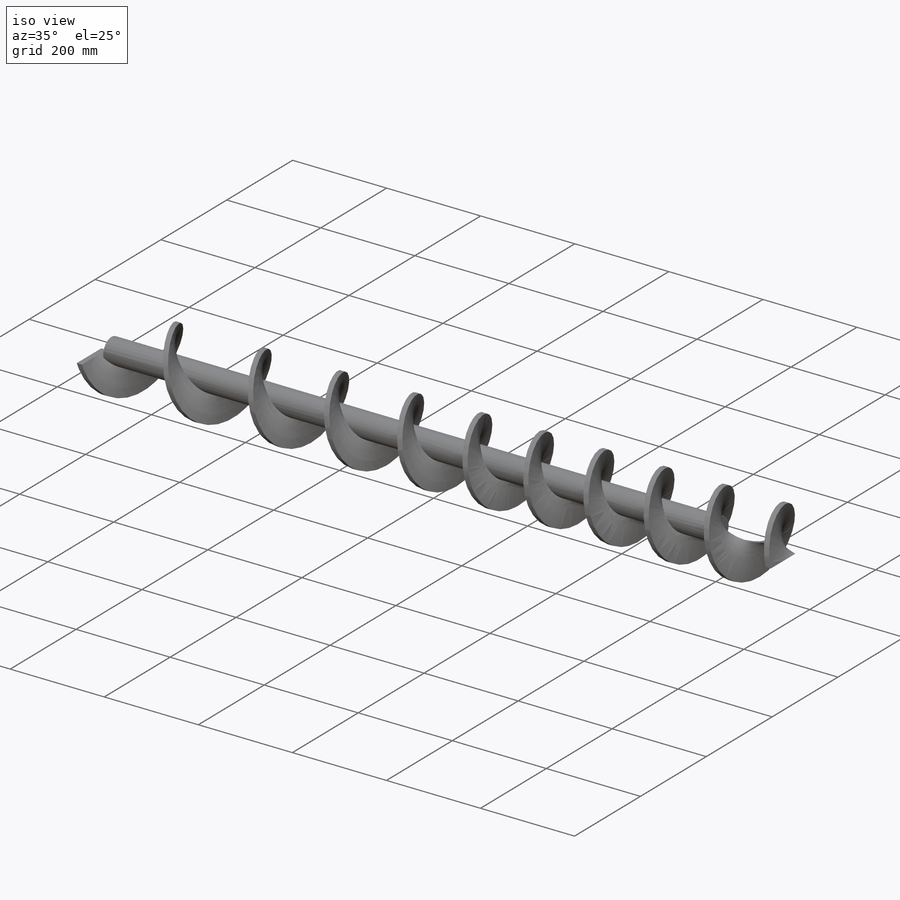
[diagram: iso view]
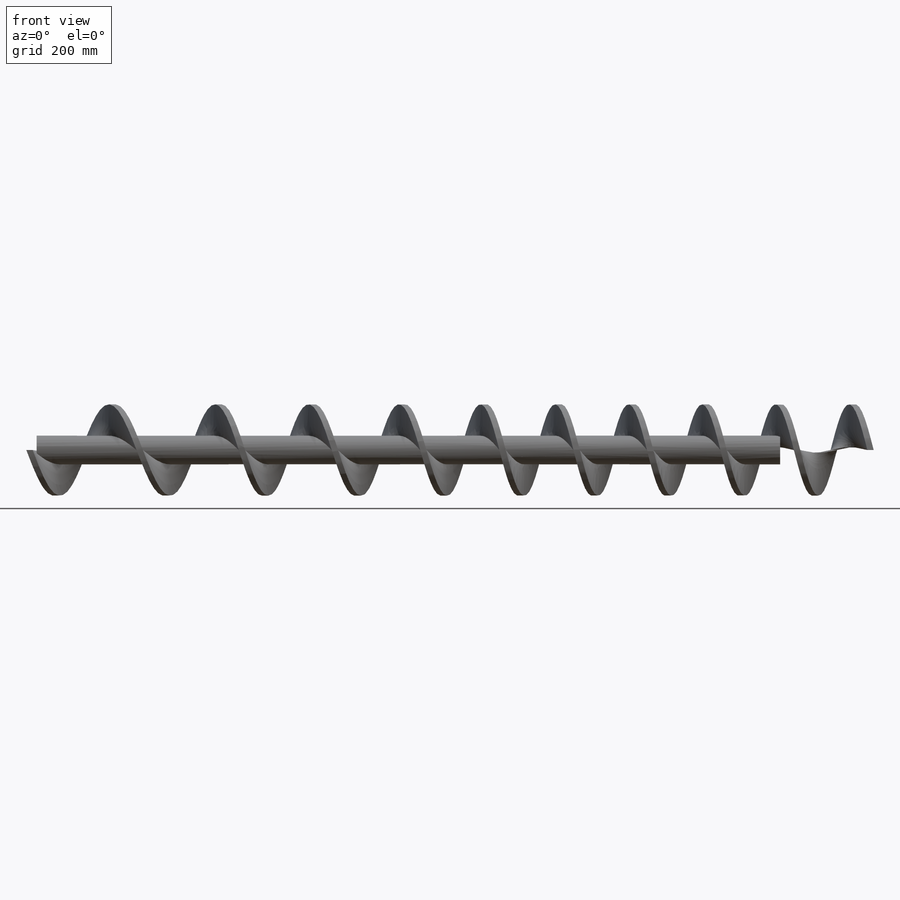
[diagram: front view]
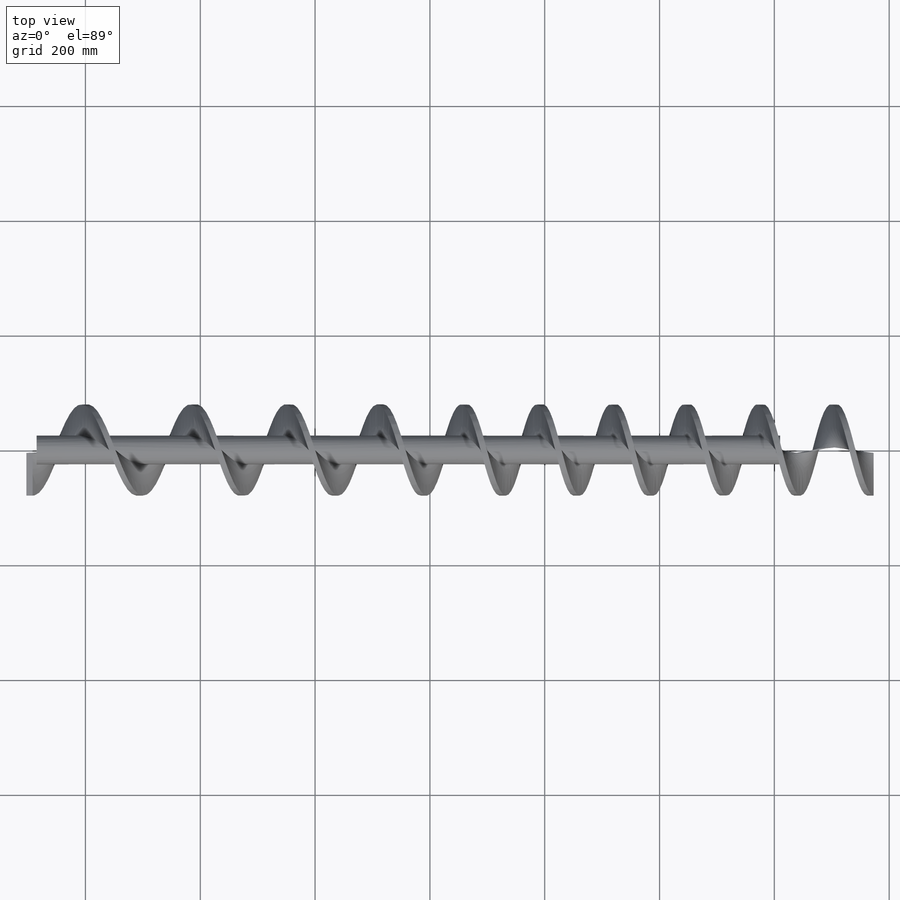
[diagram: top view]
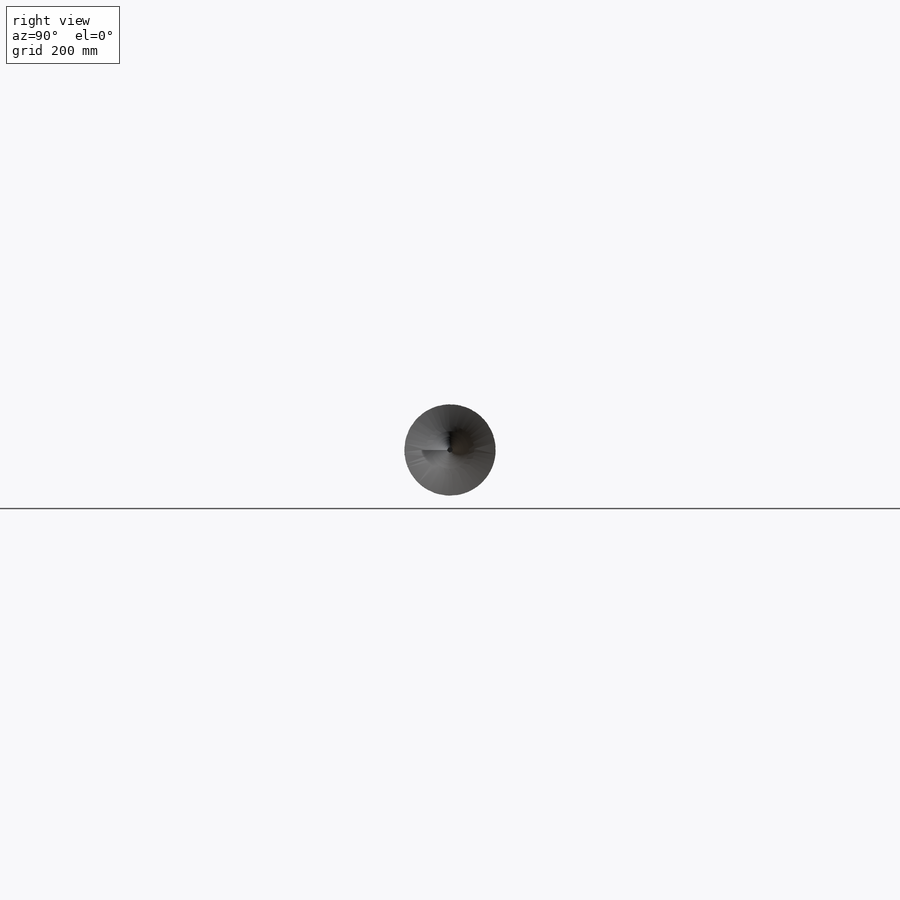
[diagram: right view]
SOLIDWORKS PART (.sldprt)
format: sldprt  version: not decoded by parser v0  size: 892,928 bytes
history: native  units: mm
features: plane x8, sketch x6, revolve x3, material x1, helix x1, sweep x1 (+10 scaffold rows collapsed)
feature tree (30):
  scaffold x10  (default folders/planes/origin — collapsed)
  material  "Material <nicht festgelegt>"
  plane  "Ebene vorne"
  plane  "Ebene oben"
  plane  "Ebene rechts"
  sketch  "Basisskizze Rotationskörper"  dims[c1.D1=~167.398945mm c2.D1=2020.0mm c2.D2=1295.0mm c2.D3=100.0mm c2.D4=170.0mm c2.D5=350.0mm c2.D6=445.0mm c2.D7=47.9mm c2.D8=55.0mm c2.D9=85.0mm c2.D10=159.2mm c2.D11=50.0mm c2.D12=2010.0mm c2.D13=54.0mm c2.D14=8.5mm]
  revolve  "Rotation Schneckenteil"  Angle=360deg
  plane  "Ebene Start Flansch"  Offset=163mm
  sketch  "Skizze1"  dims[D1=159.0mm]
  helix  "Spirale/Helix1"  Pitch=3141.592654mm
  plane  "Ebene Querschnitt Flansch"
  plane  "Ebene Ende Schnecke"  Offset=0mm
  sketch  "Skizze2"  dims[D1=11.0mm D2=5.0mm]
  sweep  "Austragung1"
  plane  "Ebene Start Kern 1"  Offset=158mm
  sketch  "Skizze3"  dims[D1=115.0mm]
  revolve  "Spirale/Helix2"  Angle=57.29578deg
  plane  "Ebene Start Kern 2"  Offset=126mm
  sketch  "Skizze4"
  revolve  "Spirale/Helix3"  Angle=57.29578deg
  sketch  "Skizze5"  dims[D1=15.0mm D2=90.0mm]
decode coverage: 9 of 11 modeling features carry decoded parameters
note: ~ marks probable driven/reference dimensions
note: suppression state not decoded; provenance and decode notes live in map.json
